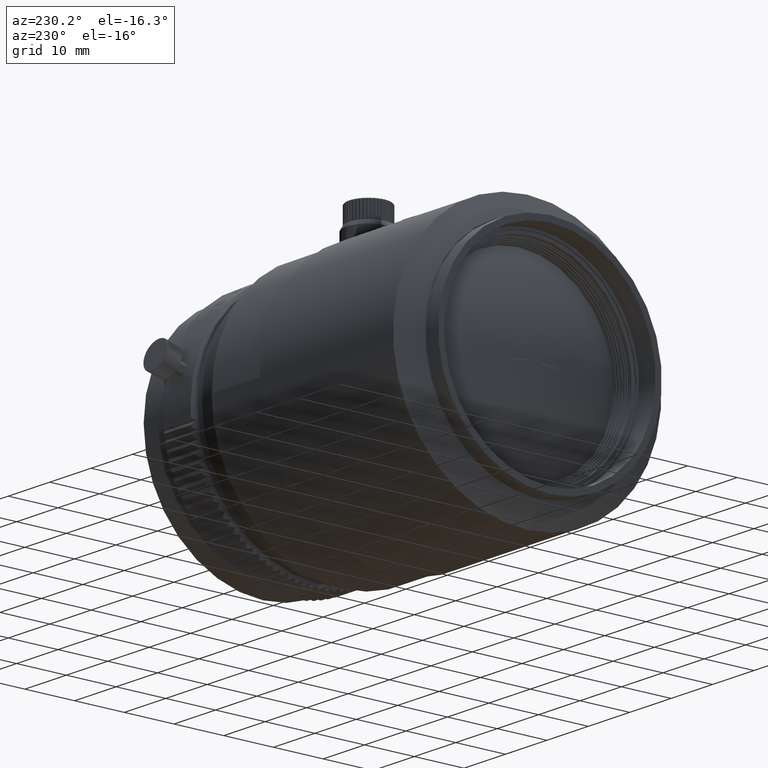
[diagram: clean part render]
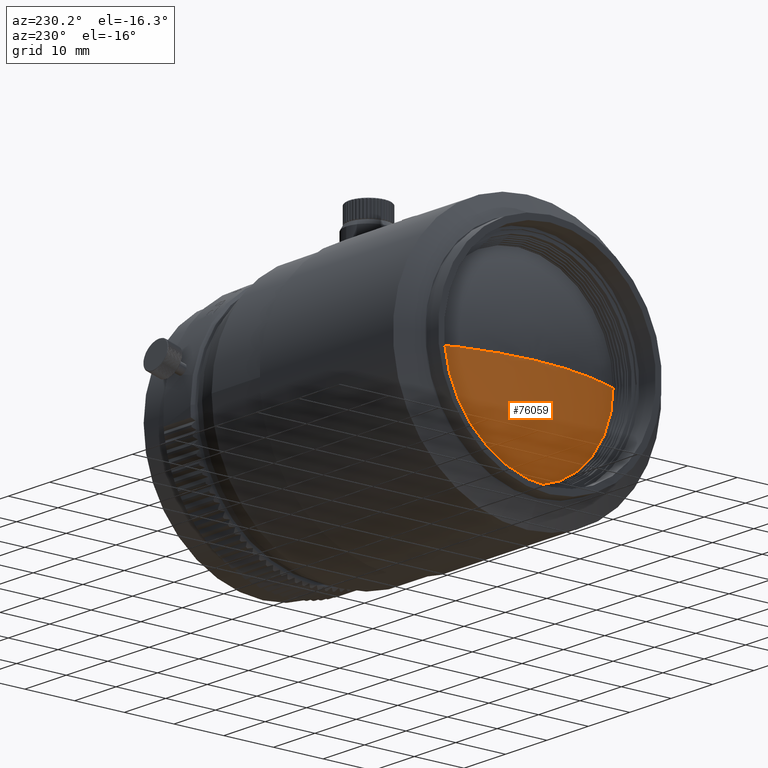
[diagram: same view with one face highlighted and labeled with its STEP entity id]
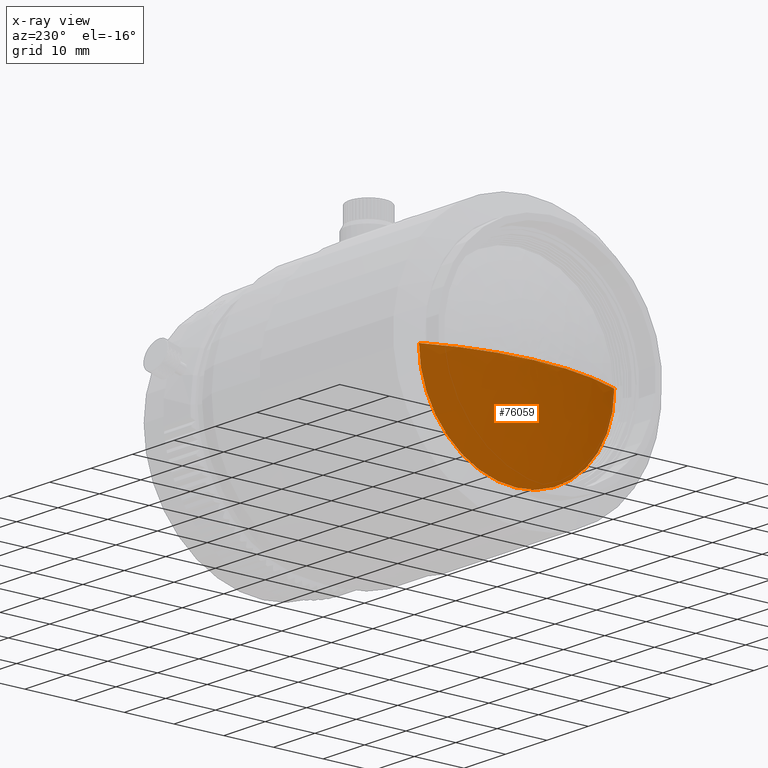
[diagram: x-ray of the same camera — body ghosted, the highlighted face saturated]
A machine part, auxiliary view. The second image highlights one B-rep face of the part: STEP entity #76059.
The next image is the same camera in x-ray: the body ghosted, the highlighted face saturated — about 0% of this face is hidden behind the body in this view.
In plain terms, the highlighted face is a freeform B-spline surface patch.
Its self-contained STEP definition (entity closure, byte-faithful):
#1611 = CARTESIAN_POINT ( 'NONE',  ( 2617.233418972624804, 1119.326136161930890, 1.645292295889452049E-15 ) ) ;
#3222 = VERTEX_POINT ( 'NONE', #45240 ) ;
#3734 =( BOUNDED_SURFACE ( )  B_SPLINE_SURFACE ( 3, 3, ( 
 ( #33401, #57653, #47661, #71888 ),
 ( #52845, #11511, #16321, #35727 ),
 ( #58815, #34565, #42085, #48050 ),
 ( #35332, #66314, #65151, #28636 ) ),
 .UNSPECIFIED., .F., .F., .F. ) 
 B_SPLINE_SURFACE_WITH_KNOTS ( ( 4, 4 ),
 ( 4, 4 ),
 ( 0.000000000000000000, 0.9802535817719002509 ),
 ( 0.000000000000000000, 1.000000000000000000 ),
 .UNSPECIFIED. ) 
 GEOMETRIC_REPRESENTATION_ITEM ( )  RATIONAL_B_SPLINE_SURFACE ( (
 ( 1.000000000000000000, 0.3333333333333334259, 0.3333333333333334259, 1.000000000000000000),
 ( 0.9854168339476736538, 0.3284722779825579586, 0.3284722779825579586, 0.9854168339476736538),
 ( 0.9851288686517145621, 0.3283762895505716317, 0.3283762895505716317, 0.9851288686517145621),
 ( 0.9991361041121228359, 0.3330453680373743897, 0.3330453680373743897, 0.9991361041121228359) ) ) 
 REPRESENTATION_ITEM ( '' )  SURFACE ( )  );
#5956 = VERTEX_POINT ( 'NONE', #17477 ) ;
#8229 = CARTESIAN_POINT ( 'NONE',  ( 2619.971823037860759, 1152.410966782283822, 0.000000000000000000 ) ) ;
#9624 = AXIS2_PLACEMENT_3D ( 'NONE', #34298, #40654, #70840 ) ;
#9806 =( BOUNDED_CURVE ( )  B_SPLINE_CURVE ( 3, ( #54224, #12133, #36714, #67685 ),
 .UNSPECIFIED., .F., .T. ) 
 B_SPLINE_CURVE_WITH_KNOTS ( ( 4, 4 ),
 ( 0.000000000000000000, 0.9802535752017694781 ),
 .UNSPECIFIED. ) 
 CURVE ( )  GEOMETRIC_REPRESENTATION_ITEM ( )  RATIONAL_B_SPLINE_CURVE ( ( 1.000000000000000000, 0.9854168340454170227, 0.9851288686555746965, 0.9991361038304732434 ) ) 
 REPRESENTATION_ITEM ( '' )  );
#10313 = CIRCLE ( 'NONE', #66073, 19.64999968711245160 ) ;
#11511 = CARTESIAN_POINT ( 'NONE',  ( 2615.834805614175366, 1125.971253060171875, -13.57942849365656102 ) ) ;
#11863 =( BOUNDED_CURVE ( )  B_SPLINE_CURVE ( 3, ( #21098, #67921, #1611, #68715 ),
 .UNSPECIFIED., .F., .T. ) 
 B_SPLINE_CURVE_WITH_KNOTS ( ( 4, 4 ),
 ( 0.000000000000000000, 0.9802535752017706994 ),
 .UNSPECIFIED. ) 
 CURVE ( )  GEOMETRIC_REPRESENTATION_ITEM ( )  RATIONAL_B_SPLINE_CURVE ( ( 1.000000000000000000, 0.9854168340454170227, 0.9851288686555748075, 0.9991361038304732434 ) ) 
 REPRESENTATION_ITEM ( '' )  );
#12133 = CARTESIAN_POINT ( 'NONE',  ( 2615.834805614175821, 1139.550681507647141, 0.000000000000000000 ) ) ;
#14491 = ORIENTED_EDGE ( 'NONE', *, *, #49018, .F. ) ;
#16321 = CARTESIAN_POINT ( 'NONE',  ( 2615.834805614175366, 1139.550681553828326, -13.57942849365656279 ) ) ;
#17477 = CARTESIAN_POINT ( 'NONE',  ( 2619.971823037860759, 1113.110967831716380, 2.406430896065297659E-15 ) ) ;
#21098 = CARTESIAN_POINT ( 'NONE',  ( 2615.834805696930289, 1132.760967306999873, 2.719262146893782203E-29 ) ) ;
#21132 = FACE_OUTER_BOUND ( 'NONE', #32809, .T. ) ;
#25569 = CARTESIAN_POINT ( 'NONE',  ( 2619.971822891039665, 1132.760967307000101, 0.000000000000000000 ) ) ;
#28636 = CARTESIAN_POINT ( 'NONE',  ( 2619.971822891040119, 1152.410966994112414, -4.812861844013692276E-15 ) ) ;
#32809 = EDGE_LOOP ( 'NONE', ( #78062, #64315, #14491, #68169 ) ) ;
#33401 = CARTESIAN_POINT ( 'NONE',  ( 2615.834805696930289, 1132.760967306999873, 2.465190328815661892E-29 ) ) ;
#34298 = CARTESIAN_POINT ( 'NONE',  ( 2619.971822891039665, 1132.760967307000101, 0.000000000000000000 ) ) ;
#34565 = CARTESIAN_POINT ( 'NONE',  ( 2617.233418991378585, 1119.326136072827467, -26.86966246834553829 ) ) ;
#35332 = CARTESIAN_POINT ( 'NONE',  ( 2619.971822891040119, 1113.110967619887788, 2.406430922006834700E-15 ) ) ;
#35727 = CARTESIAN_POINT ( 'NONE',  ( 2615.834805614175821, 1139.550681553828554, -1.663000363900710434E-15 ) ) ;
#36714 = CARTESIAN_POINT ( 'NONE',  ( 2617.233418972624349, 1146.195798452069766, 0.000000000000000000 ) ) ;
#40654 = DIRECTION ( 'NONE',  ( 1.000000000000000000, 0.000000000000000000, 0.000000000000000000 ) ) ;
#42085 = CARTESIAN_POINT ( 'NONE',  ( 2617.233418991378585, 1146.195798541172735, -26.86966246834554184 ) ) ;
#43417 = VERTEX_POINT ( 'NONE', #48554 ) ;
#43850 = CIRCLE ( 'NONE', #9624, 19.64999968711245160 ) ;
#44226 = DIRECTION ( 'NONE',  ( 0.000000000000000000, 1.000000000000000000, 0.000000000000000000 ) ) ;
#45240 = CARTESIAN_POINT ( 'NONE',  ( 2615.834805696930289, 1132.760967306999873, 2.719262146893782203E-29 ) ) ;
#47661 = CARTESIAN_POINT ( 'NONE',  ( 2615.834805696930289, 1132.760967307000328, -4.440892098500625657E-13 ) ) ;
#48050 = CARTESIAN_POINT ( 'NONE',  ( 2617.233418991379040, 1146.195798541172735, -3.290584613602956006E-15 ) ) ;
#48554 = CARTESIAN_POINT ( 'NONE',  ( 2619.971822891039665, 1132.760967307000101, -19.64999968711245160 ) ) ;
#49018 = EDGE_CURVE ( 'NONE', #43417, #69934, #10313, .T. ) ;
#52845 = CARTESIAN_POINT ( 'NONE',  ( 2615.834805614175821, 1125.971253060171648, 8.315001819503524561E-16 ) ) ;
#54224 = CARTESIAN_POINT ( 'NONE',  ( 2615.834805696930289, 1132.760967306999873, 2.719262146893782203E-29 ) ) ;
#55746 = DIRECTION ( 'NONE',  ( 1.000000000000000000, 0.000000000000000000, 0.000000000000000000 ) ) ;
#57653 = CARTESIAN_POINT ( 'NONE',  ( 2615.834805696930289, 1132.760967306999873, -4.440892098500625657E-13 ) ) ;
#58815 = CARTESIAN_POINT ( 'NONE',  ( 2617.233418991379040, 1119.326136072827467, 1.645292306801491019E-15 ) ) ;
#60179 = EDGE_CURVE ( 'NONE', #3222, #69934, #9806, .T. ) ;
#60439 = EDGE_CURVE ( 'NONE', #5956, #43417, #43850, .T. ) ;
#64067 = EDGE_CURVE ( 'NONE', #3222, #5956, #11863, .T. ) ;
#64315 = ORIENTED_EDGE ( 'NONE', *, *, #60179, .T. ) ;
#65151 = CARTESIAN_POINT ( 'NONE',  ( 2619.971822891040119, 1152.410966994112414, -39.29999937422445555 ) ) ;
#66073 = AXIS2_PLACEMENT_3D ( 'NONE', #25569, #55746, #44226 ) ;
#66314 = CARTESIAN_POINT ( 'NONE',  ( 2619.971822891040119, 1113.110967619887788, -39.29999937422444845 ) ) ;
#67685 = CARTESIAN_POINT ( 'NONE',  ( 2619.971823037860759, 1152.410966782283822, 0.000000000000000000 ) ) ;
#67921 = CARTESIAN_POINT ( 'NONE',  ( 2615.834805614175821, 1125.971253106353061, 8.315001762947630936E-16 ) ) ;
#68169 = ORIENTED_EDGE ( 'NONE', *, *, #60439, .F. ) ;
#68715 = CARTESIAN_POINT ( 'NONE',  ( 2619.971823037860759, 1113.110967831716380, 2.406430896065297659E-15 ) ) ;
#69934 = VERTEX_POINT ( 'NONE', #8229 ) ;
#70840 = DIRECTION ( 'NONE',  ( 0.000000000000000000, 1.000000000000000000, 0.000000000000000000 ) ) ;
#71888 = CARTESIAN_POINT ( 'NONE',  ( 2615.834805696930289, 1132.760967307000328, -4.930380657631323784E-29 ) ) ;
#76059 = ADVANCED_FACE ( 'NONE', ( #21132 ), #3734, .F. ) ;
#78062 = ORIENTED_EDGE ( 'NONE', *, *, #64067, .F. ) ;